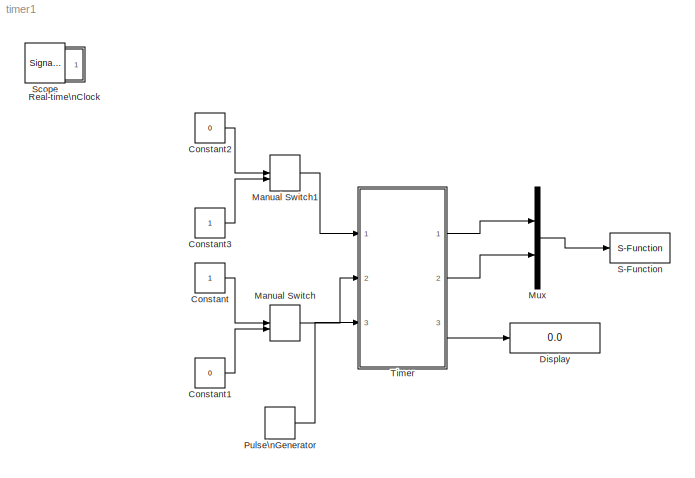
MODEL timer1
KIND model
BLOCK [Constant] Constant
  SID = 128
BLOCK [Constant] Constant1
  SID = 129
  Value = 0
BLOCK [Constant] Constant2
  SID = 132
  Value = 0
BLOCK [Constant] Constant3
  SID = 133
BLOCK [Display] Display
  Decimation = 1
  Lockdown = off
  Ports = [1]
  SID = 182
BLOCK [ManualSwitch] Manual Switch
  SID = 130
BLOCK [ManualSwitch] Manual Switch1
  CurrentSetting = 0
  SID = 134
BLOCK [Mux] Mux
  DisplayOption = bar
  Inputs = 2
  Ports = [2, 1]
  SID = 179
BLOCK [DiscretePulseGenerator] Pulse\nGenerator
  Period = 1
  Ports = [0, 1]
  PulseType = Time based
  PulseWidth = 50
  SID = 139
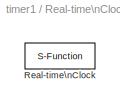
BLOCK [SubSystem] Real-time\nClock
  FunctionWithSeparateData = off
  MaskHideContents = off
  MinAlgLoopOccurrences = off
  Opaque = off
  Ports = []
  PropExecContextOutsideSubsystem = off
  RTWSystemCode = Auto
  RequestExecContextInheritance = off
  SID = 30
  ShowPortLabels = none
BLOCK [S-Function] Real-time\nClock/Real-time\nClock
  EnableBusSupport = off
  FunctionName = rtclock
  Parameters = sample_time, tolerance
  Ports = []
  SID = 31
BLOCK [S-Function] S-Function
  EnableBusSupport = off
  FunctionName = opgui_sf
  Parameters = 0.005
  Ports = [1]
  SID = 178
BLOCK [SignalViewerScope] Scope
  IOType = viewer
  MaxDataPoints = 7500
  NumInputPorts = 1
  Ports = []
  RefreshTime = 0.035000
  SID = 154
  ShowDataMarkers = off
  ShowLegends = off
  YMax = 60
  YMin = 0
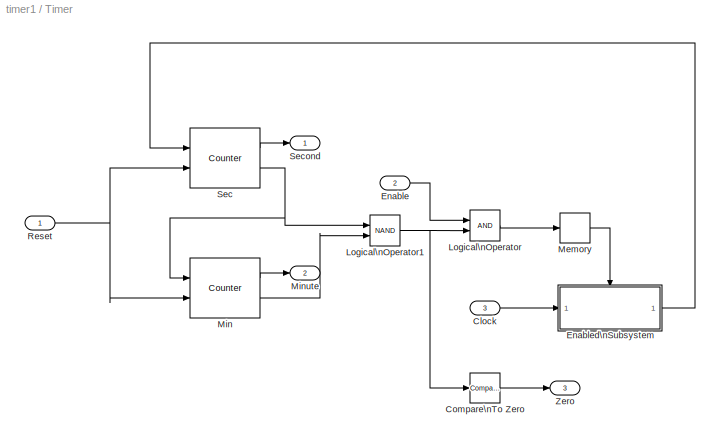
BLOCK [SubSystem] Timer
  FunctionWithSeparateData = off
  MaskHideContents = off
  MinAlgLoopOccurrences = off
  Opaque = off
  Ports = [3, 3]
  PropExecContextOutsideSubsystem = off
  RTWSystemCode = Auto
  RequestExecContextInheritance = off
  SID = 108
BLOCK [Inport] Timer/Clock
  IconDisplay = Port number
  Port = 3
  SID = 138
BLOCK [Reference] Timer/Compare\nTo Zero  REF=simulink/Logic and Bit\nOperations/Compare\nTo Zero
  OutDataTypeStr = uint8
  Ports = [1, 1]
  SID = 131
  SourceBlock = simulink/Logic and Bit\nOperations/Compare\nTo Zero
  SourceType = Compare To Zero
  ZeroCross = on
  relop = ==
BLOCK [Inport] Timer/Enable
  IconDisplay = Port number
  Port = 2
  SID = 118
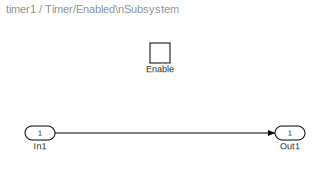
BLOCK [SubSystem] Timer/Enabled\nSubsystem
  FunctionWithSeparateData = off
  MaskHideContents = off
  MinAlgLoopOccurrences = off
  Opaque = off
  Ports = [1, 1, 1]
  PropExecContextOutsideSubsystem = off
  RTWSystemCode = Auto
  RequestExecContextInheritance = off
  SID = 85
  TreatAsAtomicUnit = on
BLOCK [EnablePort] Timer/Enabled\nSubsystem/Enable
  Ports = []
  SID = 87
BLOCK [Inport] Timer/Enabled\nSubsystem/In1
  IconDisplay = Port number
  SID = 86
BLOCK [Outport] Timer/Enabled\nSubsystem/Out1
  IconDisplay = Port number
  SID = 88
BLOCK [Logic] Timer/Logical\nOperator
  AllPortsSameDT = off
  OutDataTypeStr = boolean
  Ports = [2, 1]
  SID = 119
BLOCK [Logic] Timer/Logical\nOperator1
  AllPortsSameDT = off
  Operator = NAND
  OutDataTypeStr = boolean
  Ports = [2, 1]
  SID = 40
BLOCK [Memory] Timer/Memory
  SID = 90
BLOCK [Reference] Timer/Min  REF=dspswit3/Counter
  CntDtype = double
  CountEvent = Falling edge
  CounterSize = User defined
  Direction = Down
  HitDtype = Logical
  HitValue = 0
  InitialCount = 2
  MaxCount = 2
  Output = Count and Hit
  Ports = [2, 2]
  ResetInput = on
  SID = 33
  SamplesPerFrame = 1
  SourceBlock = dspswit3/Counter
  SourceType = Counter
  Ts = 1
BLOCK [Outport] Timer/Minute
  IconDisplay = Port number
  Port = 2
  SID = 121
BLOCK [Inport] Timer/Reset
  IconDisplay = Port number
  SID = 117
BLOCK [Reference] Timer/Sec  REF=dspswit3/Counter
  CntDtype = double
  CountEvent = Falling edge
  CounterSize = User defined
  Direction = Down
  HitDtype = Logical
  HitValue = 0
  InitialCount = 30
  MaxCount = 59
  Output = Count and Hit
  Ports = [2, 2]
  ResetInput = on
  SID = 62
  SamplesPerFrame = 1
  SourceBlock = dspswit3/Counter
  SourceType = Counter
  Ts = 1
BLOCK [Outport] Timer/Second
  IconDisplay = Port number
  SID = 120
BLOCK [Outport] Timer/Zero
  IconDisplay = Port number
  Port = 3
  SID = 124
LINE Constant1:1 -> Manual Switch:2
LINE Constant2:1 -> Manual Switch1:1
LINE Constant3:1 -> Manual Switch1:2
LINE Constant:1 -> Manual Switch:1
LINE Manual Switch1:1 -> Timer:1
LINE Manual Switch:1 -> Timer:2
LINE Mux:1 -> S-Function:1
LINE Pulse\nGenerator:1 -> Timer:3
LINE Timer/Clock:1 -> Timer/Enabled\nSubsystem:1
LINE Timer/Compare\nTo Zero:1 -> Timer/Zero:1
LINE Timer/Enable:1 -> Timer/Logical\nOperator:1
LINE Timer/Enabled\nSubsystem/In1:1 -> Timer/Enabled\nSubsystem/Out1:1
LINE Timer/Enabled\nSubsystem:1 -> Timer/Sec:1
NET Timer/Logical\nOperator1:1 -> Timer/Compare\nTo Zero:1, Timer/Logical\nOperator:2
LINE Timer/Logical\nOperator:1 -> Timer/Memory:1
LINE Timer/Memory:1 -> Timer/Enabled\nSubsystem:enable
LINE Timer/Min:1 -> Timer/Minute:1
LINE Timer/Min:2 -> Timer/Logical\nOperator1:2
NET Timer/Reset:1 -> Timer/Min:2, Timer/Sec:2
LINE Timer/Sec:1 -> Timer/Second:1
NET Timer/Sec:2 -> Timer/Logical\nOperator1:1, Timer/Min:1
LINE Timer:1 -> Mux:1
LINE Timer:2 -> Mux:2
LINE Timer:3 -> Display:1
note: NET lines group one-source signal fan-out (src -> all destinations, sorted); 1:1 wires keep LINE
